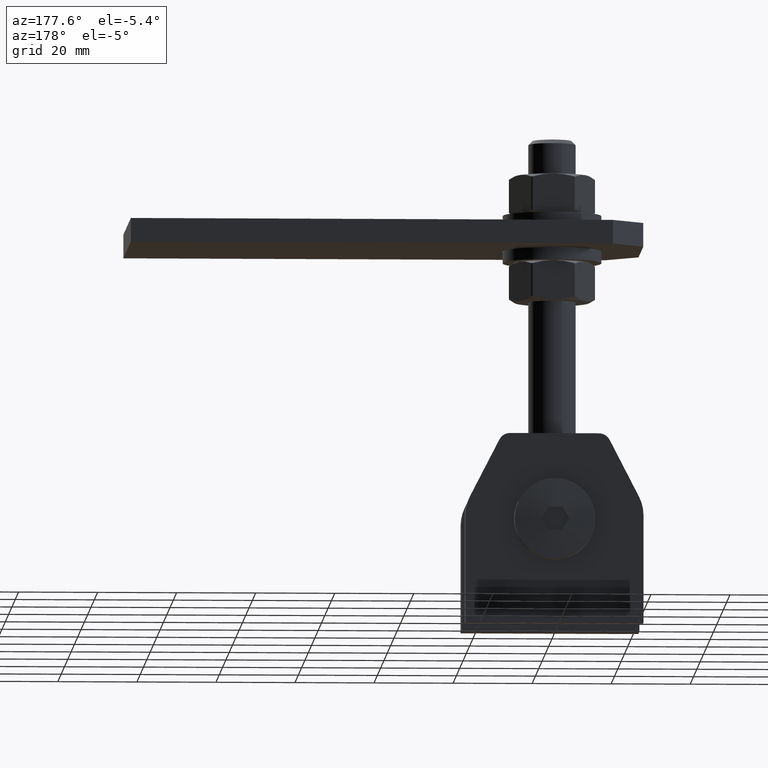
[diagram: clean part render]
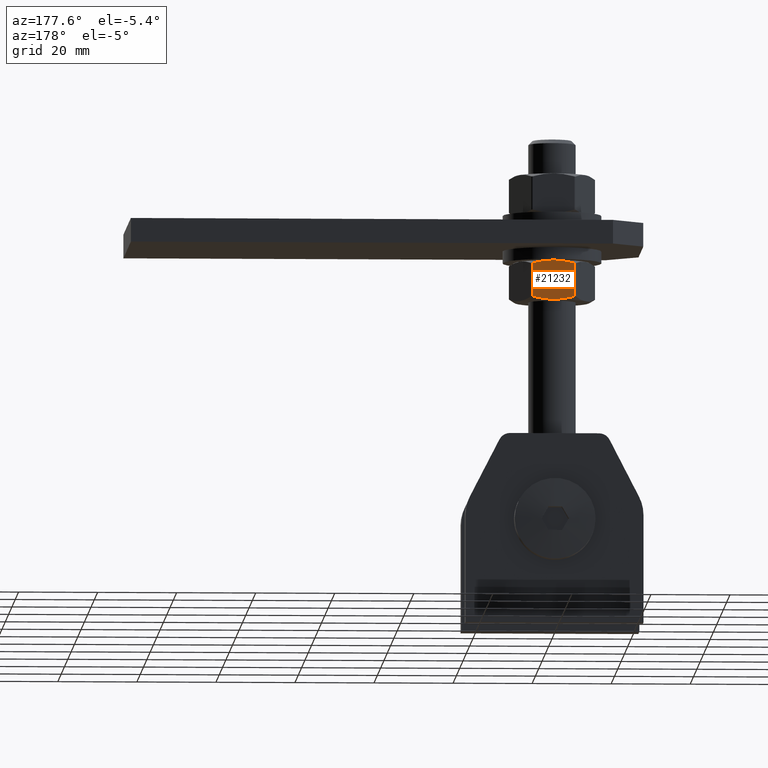
[diagram: same view with one face highlighted and labeled with its STEP entity id]
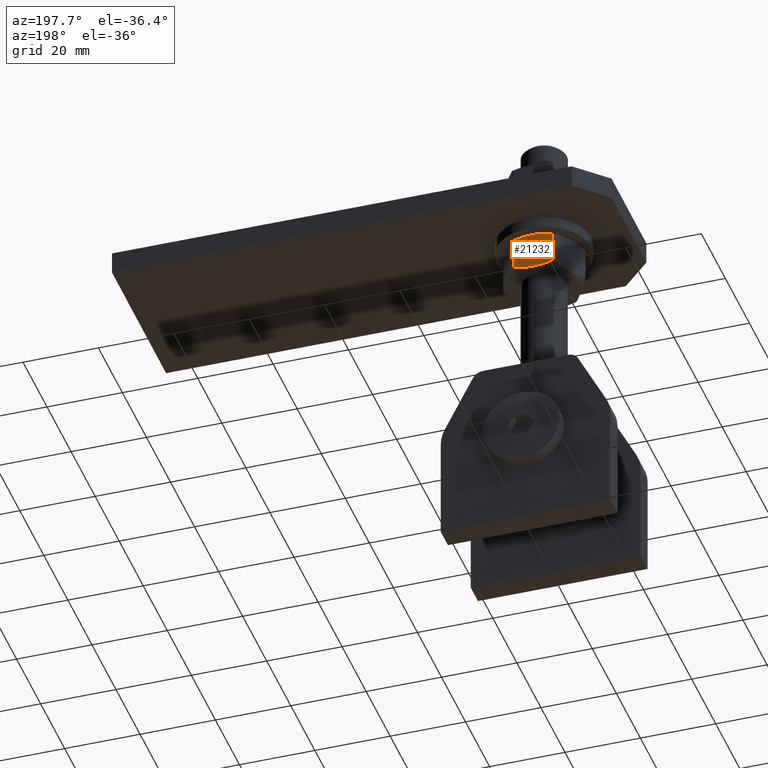
[diagram: same view with one face highlighted and labeled with its STEP entity id]
A machine part, auxiliary view. The second image highlights one B-rep face of the part: STEP entity #21232.
A second angle (auxiliary view) of the same face is appended — the face is thin or edge-on in the first view.
In plain terms, the highlighted planar face has unit normal (-0, -1, 0).
Its self-contained STEP definition (entity closure, byte-faithful):
#124 = CARTESIAN_POINT ( 'NONE',  ( 6.162975822039154730E-30, 5.000000000000004441, 9.499999999999859668 ) ) ;
#452 = CARTESIAN_POINT ( 'NONE',  ( -4.348666152671970764, -4.467960792442939422, 9.499999999999857891 ) ) ;
#474 = ORIENTED_EDGE ( 'NONE', *, *, #9562, .T. ) ;
#546 = VERTEX_POINT ( 'NONE', #16067 ) ;
#825 = VERTEX_POINT ( 'NONE', #20694 ) ;
#1164 = CARTESIAN_POINT ( 'NONE',  ( -1.540743955509788682E-30, -5.000000000000004441, 9.499999999999859668 ) ) ;
#1304 = ORIENTED_EDGE ( 'NONE', *, *, #4278, .T. ) ;
#1664 = CARTESIAN_POINT ( 'NONE',  ( -5.196152422706624918, 5.000000000000004441, 9.499999999999859668 ) ) ;
#1740 = CARTESIAN_POINT ( 'NONE',  ( -1.748548221912497036, 4.928786257910896751, 9.499999999999861444 ) ) ;
#2231 = CARTESIAN_POINT ( 'NONE',  ( 4.354865280869877786, 4.466243297580234639, 9.499999999999861444 ) ) ;
#2965 = ORIENTED_EDGE ( 'NONE', *, *, #20189, .T. ) ;
#3306 = CARTESIAN_POINT ( 'NONE',  ( -3.482435840627233770, 4.663065989375693832, 9.499999999999859668 ) ) ;
#3763 = DIRECTION ( 'NONE',  ( -8.408266752384752455E-39, -1.578422590215487968E-41, -1.000000000000000000 ) ) ;
#3957 = VERTEX_POINT ( 'NONE', #18785 ) ;
#3958 = CARTESIAN_POINT ( 'NONE',  ( 0.4385791114193079432, 5.000000000000085265, 9.499999999999861444 ) ) ;
#4230 = B_SPLINE_CURVE_WITH_KNOTS ( 'NONE', 3,
 ( #124, #8392, #1740, #3306, #6828, #11968 ),
 .UNSPECIFIED., .F., .F.,
 ( 4, 2, 4 ),
 ( 0.009558317508500443344, 0.01217662311715555709, 0.01479492872581067257 ),
 .UNSPECIFIED. ) ;
#4278 = EDGE_CURVE ( 'NONE', #546, #825, #7974, .T. ) ;
#5150 = B_SPLINE_CURVE_WITH_KNOTS ( 'NONE', 3,
 ( #15566, #452, #5405, #19160, #17368, #7009 ),
 .UNSPECIFIED., .F., .F.,
 ( 4, 2, 4 ),
 ( 0.01008431317107067078, 0.01270932973017896775, 0.01533434628928726298 ),
 .UNSPECIFIED. ) ;
#5405 = CARTESIAN_POINT ( 'NONE',  ( -3.482435840627237766, -4.663065989375694720, 9.499999999999861444 ) ) ;
#5457 = DIRECTION ( 'NONE',  ( -1.000000000000000000, 0.000000000000000000, 8.408266752384752455E-39 ) ) ;
#5657 = CARTESIAN_POINT ( 'NONE',  ( 6.162975822039154730E-30, 5.000000000000004441, 9.499999999999859668 ) ) ;
#5730 = CARTESIAN_POINT ( 'NONE',  ( 5.196152422706642682, 4.233161112797784398, 9.499999999999859668 ) ) ;
#6287 = CARTESIAN_POINT ( 'NONE',  ( 3.502637132481592364, -4.659066489143171452, 9.499999999999859668 ) ) ;
#6828 = CARTESIAN_POINT ( 'NONE',  ( -4.348666152671974316, 4.467960792442939422, 9.499999999999861444 ) ) ;
#6921 = B_SPLINE_CURVE_WITH_KNOTS ( 'NONE', 3,
 ( #5730, #2231, #14094, #10894, #7409, #8969, #3958, #5657 ),
 .UNSPECIFIED., .F., .F.,
 ( 4, 2, 2, 4 ),
 ( 0.004320510210316296992, 0.006939413859408369301, 0.008248865683954406322, 0.009558317508500443344 ),
 .UNSPECIFIED. ) ;
#7009 = CARTESIAN_POINT ( 'NONE',  ( -1.540743955509788682E-30, -5.000000000000004441, 9.499999999999859668 ) ) ;
#7409 = CARTESIAN_POINT ( 'NONE',  ( 1.760928236677264502, 4.912279427820800848, 9.499999999999859668 ) ) ;
#7615 = LINE ( 'NONE', #1664, #19082 ) ;
#7947 = EDGE_CURVE ( 'NONE', #3957, #17898, #7615, .T. ) ;
#7974 = LINE ( 'NONE', #11589, #20503 ) ;
#8048 = CARTESIAN_POINT ( 'NONE',  ( 2.200295668405354732, -4.859992646379081016, 9.499999999999859668 ) ) ;
#8392 = CARTESIAN_POINT ( 'NONE',  ( -0.8769579191401540852, 5.000000000000084377, 9.499999999999857891 ) ) ;
#8394 = DIRECTION ( 'NONE',  ( -0.000000000000000000, 1.000000000000000000, 2.582873329443502825E-41 ) ) ;
#8421 = EDGE_CURVE ( 'NONE', #17898, #19495, #5150, .T. ) ;
#8969 = CARTESIAN_POINT ( 'NONE',  ( 0.8784862103107633491, 4.982381200358211970, 9.499999999999859668 ) ) ;
#9007 = ORIENTED_EDGE ( 'NONE', *, *, #8421, .T. ) ;
#9562 = EDGE_CURVE ( 'NONE', #19495, #546, #13578, .T. ) ;
#9617 = CARTESIAN_POINT ( 'NONE',  ( 5.196152422706642682, -4.233161112797755976, 9.499999999999859668 ) ) ;
#9687 = CARTESIAN_POINT ( 'NONE',  ( 4.354865280869879562, -4.466243297580235527, 9.499999999999863221 ) ) ;
#9917 = CARTESIAN_POINT ( 'NONE',  ( 0.8784862103107611286, -4.982381200358211082, 9.499999999999859668 ) ) ;
#9998 = EDGE_LOOP ( 'NONE', ( #474, #1304, #2965, #20402, #18673, #9007 ) ) ;
#10894 = CARTESIAN_POINT ( 'NONE',  ( 2.200295668405356508, 4.859992646379080128, 9.499999999999859668 ) ) ;
#11589 = CARTESIAN_POINT ( 'NONE',  ( 5.196152422706645346, 5.000000000000004441, 9.499999999999859668 ) ) ;
#11968 = CARTESIAN_POINT ( 'NONE',  ( -5.196152422707278618, 4.233161112797589887, 9.499999999999859668 ) ) ;
#13060 = CARTESIAN_POINT ( 'NONE',  ( 1.760928236677262060, -4.912279427820800848, 9.499999999999859668 ) ) ;
#13578 = B_SPLINE_CURVE_WITH_KNOTS ( 'NONE', 3,
 ( #16558, #21693, #9917, #13060, #8048, #6287, #9687, #9617 ),
 .UNSPECIFIED., .F., .F.,
 ( 4, 2, 2, 4 ),
 ( 0.01533434628928726298, 0.01664715435547534095, 0.01795996242166341891, 0.02058557855403957484 ),
 .UNSPECIFIED. ) ;
#14094 = CARTESIAN_POINT ( 'NONE',  ( 3.502637132481591475, 4.659066489143171452, 9.499999999999861444 ) ) ;
#14501 = EDGE_CURVE ( 'NONE', #19325, #3957, #4230, .T. ) ;
#14569 = CARTESIAN_POINT ( 'NONE',  ( -5.196152422707278618, -4.233161112797589887, 9.499999999999859668 ) ) ;
#15023 = AXIS2_PLACEMENT_3D ( 'NONE', #17274, #3763, #5457 ) ;
#15468 = PLANE ( 'NONE',  #15023 ) ;
#15566 = CARTESIAN_POINT ( 'NONE',  ( -5.196152422707278618, -4.233161112797589887, 9.499999999999859668 ) ) ;
#15809 = FACE_OUTER_BOUND ( 'NONE', #9998, .T. ) ;
#16067 = CARTESIAN_POINT ( 'NONE',  ( 5.196152422706642682, -4.233161112797755976, 9.499999999999859668 ) ) ;
#16558 = CARTESIAN_POINT ( 'NONE',  ( -1.540743955509788682E-30, -5.000000000000004441, 9.499999999999859668 ) ) ;
#17274 = CARTESIAN_POINT ( 'NONE',  ( -5.484827557301438006, 5.000000000000004441, 9.499999999999859668 ) ) ;
#17330 = CARTESIAN_POINT ( 'NONE',  ( 6.162975822039154730E-30, 5.000000000000004441, 9.499999999999859668 ) ) ;
#17368 = CARTESIAN_POINT ( 'NONE',  ( -0.8769579191401559726, -5.000000000000084377, 9.499999999999861444 ) ) ;
#17898 = VERTEX_POINT ( 'NONE', #14569 ) ;
#18673 = ORIENTED_EDGE ( 'NONE', *, *, #7947, .T. ) ;
#18785 = CARTESIAN_POINT ( 'NONE',  ( -5.196152422707278618, 4.233161112797589887, 9.499999999999859668 ) ) ;
#19082 = VECTOR ( 'NONE', #20313, 1000.000000000000000 ) ;
#19160 = CARTESIAN_POINT ( 'NONE',  ( -1.748548221912497924, -4.928786257910894975, 9.499999999999859668 ) ) ;
#19325 = VERTEX_POINT ( 'NONE', #17330 ) ;
#19495 = VERTEX_POINT ( 'NONE', #1164 ) ;
#20189 = EDGE_CURVE ( 'NONE', #825, #19325, #6921, .T. ) ;
#20313 = DIRECTION ( 'NONE',  ( 0.000000000000000000, -1.000000000000000000, -2.582873329443502825E-41 ) ) ;
#20402 = ORIENTED_EDGE ( 'NONE', *, *, #14501, .T. ) ;
#20503 = VECTOR ( 'NONE', #8394, 1000.000000000000000 ) ;
#20694 = CARTESIAN_POINT ( 'NONE',  ( 5.196152422706642682, 4.233161112797784398, 9.499999999999859668 ) ) ;
#21232 = ADVANCED_FACE ( 'NONE', ( #15809 ), #15468, .F. ) ;
#21693 = CARTESIAN_POINT ( 'NONE',  ( 0.4385791114193058338, -5.000000000000085265, 9.499999999999859668 ) ) ;